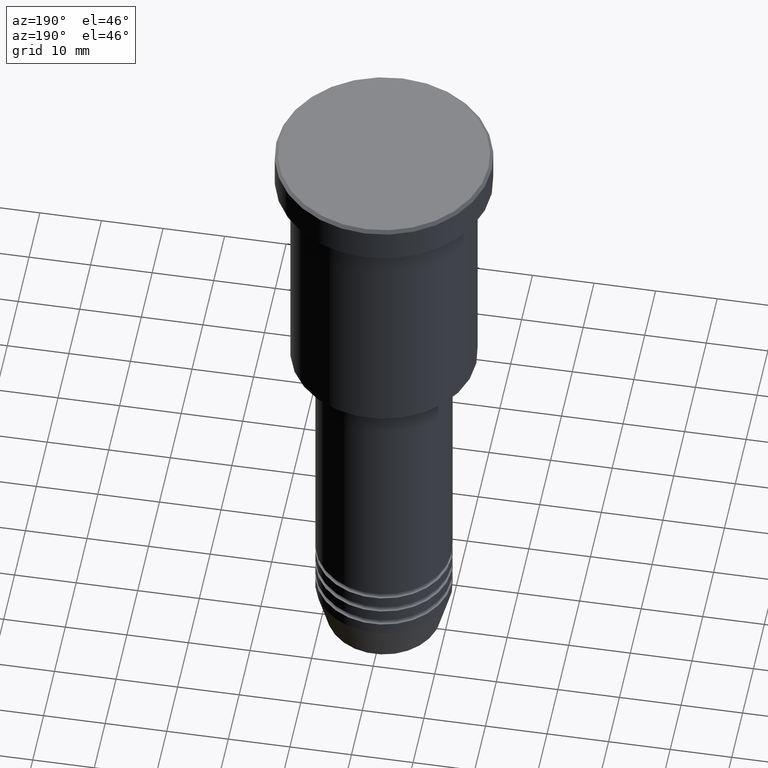
[diagram: clean part render]
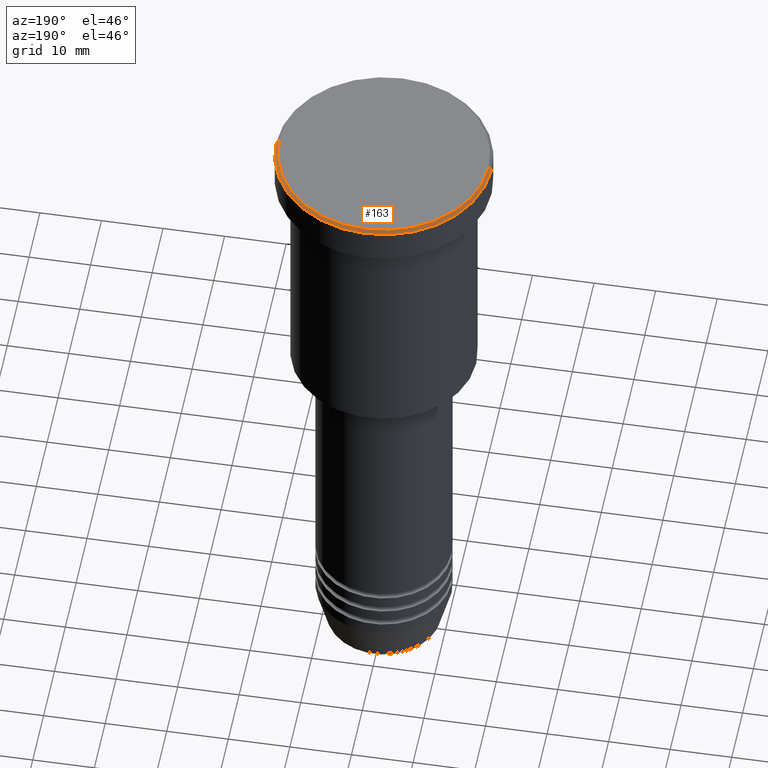
[diagram: same view with one face highlighted and labeled with its STEP entity id]
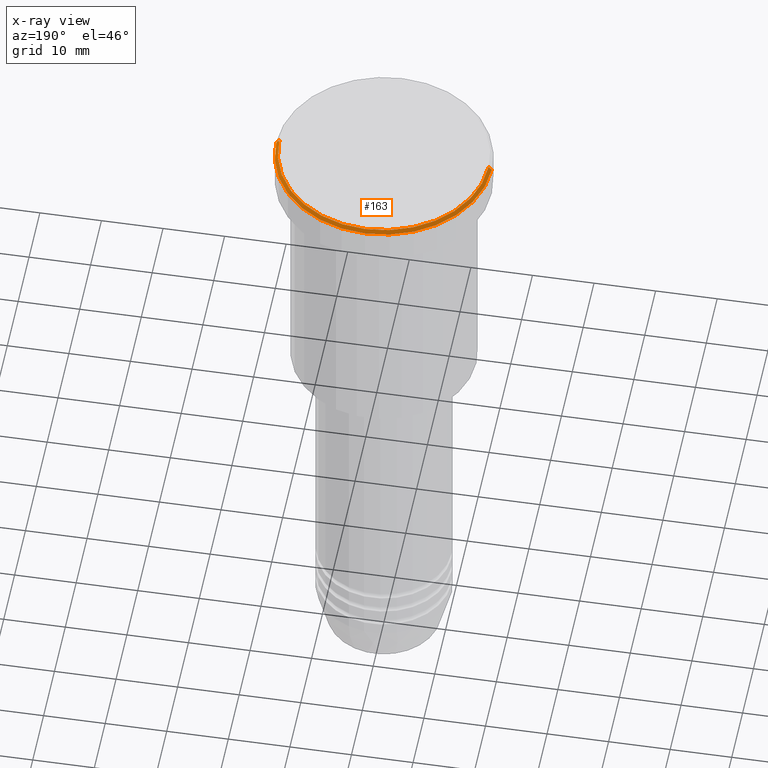
[diagram: x-ray of the same camera — body ghosted, the highlighted face saturated]
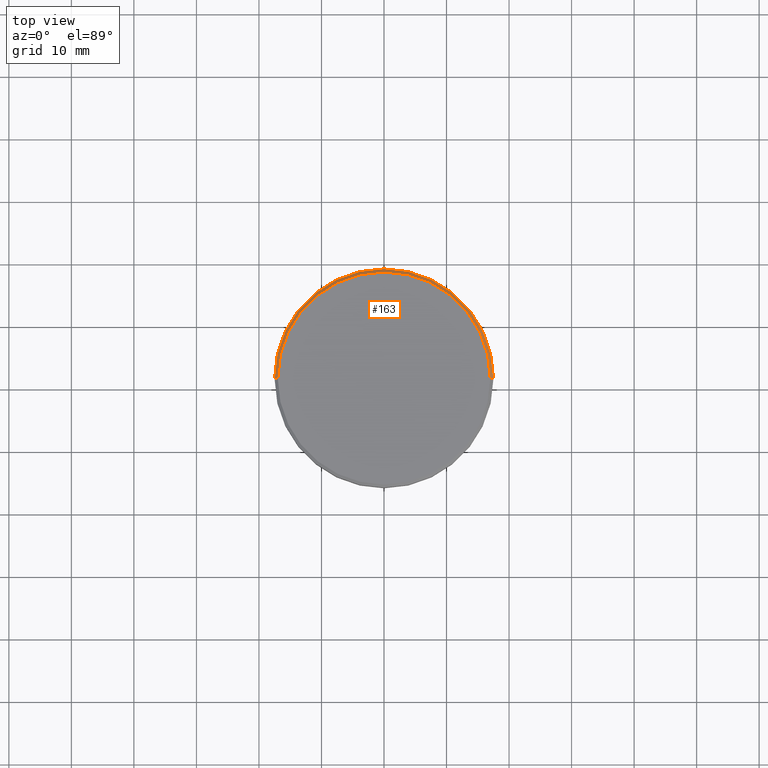
[diagram: same view with one face highlighted and labeled with its STEP entity id]
A machine part, auxiliary view. The second image highlights one B-rep face of the part: STEP entity #163.
The next image is the same camera in x-ray: the body ghosted, the highlighted face saturated — about 0% of this face is hidden behind the body in this view.
A second angle (top view) of the same face is appended — the face is thin or edge-on in the first view.
In plain terms, the highlighted conical surface has half-angle 45 deg.
Its self-contained STEP definition (entity closure, byte-faithful):
#16 = VECTOR ( 'NONE', #516, 1000.000000000000000 ) ;
#32 = CIRCLE ( 'NONE', #500, 16.99999999999998579 ) ;
#38 = CARTESIAN_POINT ( 'NONE',  ( -16.99999999999998579, 0.000000000000000000, 0.000000000000000000 ) ) ;
#50 = DIRECTION ( 'NONE',  ( 1.000000000000000000, 0.000000000000000000, 0.000000000000000000 ) ) ;
#52 = DIRECTION ( 'NONE',  ( -1.000000000000000000, 0.000000000000000000, 0.000000000000000000 ) ) ;
#137 = CARTESIAN_POINT ( 'NONE',  ( 16.99999999999998579, 2.112515728529183278E-15, 0.000000000000000000 ) ) ;
#150 = CARTESIAN_POINT ( 'NONE',  ( 17.50000000000000000, 0.000000000000000000, -0.5000000000000280886 ) ) ;
#160 = VECTOR ( 'NONE', #709, 1000.000000000000000 ) ;
#163 = ADVANCED_FACE ( 'NONE', ( #420 ), #599, .T. ) ;
#204 = AXIS2_PLACEMENT_3D ( 'NONE', #621, #223, #50 ) ;
#223 = DIRECTION ( 'NONE',  ( 0.000000000000000000, 0.000000000000000000, -1.000000000000000000 ) ) ;
#300 = CARTESIAN_POINT ( 'NONE',  ( 16.99999999999998579, 2.081899558550499096E-15, 0.000000000000000000 ) ) ;
#359 = CARTESIAN_POINT ( 'NONE',  ( -17.50000000000000000, 2.143131898507868248E-15, -0.5000000000000280886 ) ) ;
#420 = FACE_OUTER_BOUND ( 'NONE', #814, .T. ) ;
#493 = ORIENTED_EDGE ( 'NONE', *, *, #674, .F. ) ;
#500 = AXIS2_PLACEMENT_3D ( 'NONE', #881, #813, #707 ) ;
#516 = DIRECTION ( 'NONE',  ( 0.7071067811865378028, 8.659560562354814529E-17, -0.7071067811865573427 ) ) ;
#552 = ORIENTED_EDGE ( 'NONE', *, *, #986, .T. ) ;
#599 = CONICAL_SURFACE ( 'NONE', #860, 16.99999999999998579, 0.7853981633974346233 ) ;
#621 = CARTESIAN_POINT ( 'NONE',  ( 0.000000000000000000, 0.000000000000000000, -0.5000000000000280886 ) ) ;
#657 = ORIENTED_EDGE ( 'NONE', *, *, #1091, .F. ) ;
#674 = EDGE_CURVE ( 'NONE', #1100, #1098, #1103, .T. ) ;
#684 = LINE ( 'NONE', #300, #16 ) ;
#691 = CARTESIAN_POINT ( 'NONE',  ( 0.000000000000000000, 0.000000000000000000, 0.000000000000000000 ) ) ;
#695 = DIRECTION ( 'NONE',  ( 0.000000000000000000, 0.000000000000000000, -1.000000000000000000 ) ) ;
#707 = DIRECTION ( 'NONE',  ( 1.000000000000000000, 0.000000000000000000, 0.000000000000000000 ) ) ;
#709 = DIRECTION ( 'NONE',  ( -0.7071067811865378028, 0.000000000000000000, -0.7071067811865573427 ) ) ;
#719 = VERTEX_POINT ( 'NONE', #38 ) ;
#725 = VERTEX_POINT ( 'NONE', #137 ) ;
#778 = EDGE_CURVE ( 'NONE', #719, #1100, #1094, .T. ) ;
#813 = DIRECTION ( 'NONE',  ( -0.000000000000000000, -0.000000000000000000, 1.000000000000000000 ) ) ;
#814 = EDGE_LOOP ( 'NONE', ( #657, #552, #493, #1121 ) ) ;
#860 = AXIS2_PLACEMENT_3D ( 'NONE', #691, #695, #52 ) ;
#881 = CARTESIAN_POINT ( 'NONE',  ( 0.000000000000000000, 0.000000000000000000, 0.000000000000000000 ) ) ;
#908 = CARTESIAN_POINT ( 'NONE',  ( -16.99999999999998579, 0.000000000000000000, 0.000000000000000000 ) ) ;
#986 = EDGE_CURVE ( 'NONE', #725, #1098, #684, .T. ) ;
#1091 = EDGE_CURVE ( 'NONE', #725, #719, #32, .T. ) ;
#1094 = LINE ( 'NONE', #908, #160 ) ;
#1098 = VERTEX_POINT ( 'NONE', #150 ) ;
#1100 = VERTEX_POINT ( 'NONE', #359 ) ;
#1103 = CIRCLE ( 'NONE', #204, 17.50000000000000000 ) ;
#1121 = ORIENTED_EDGE ( 'NONE', *, *, #778, .F. ) ;